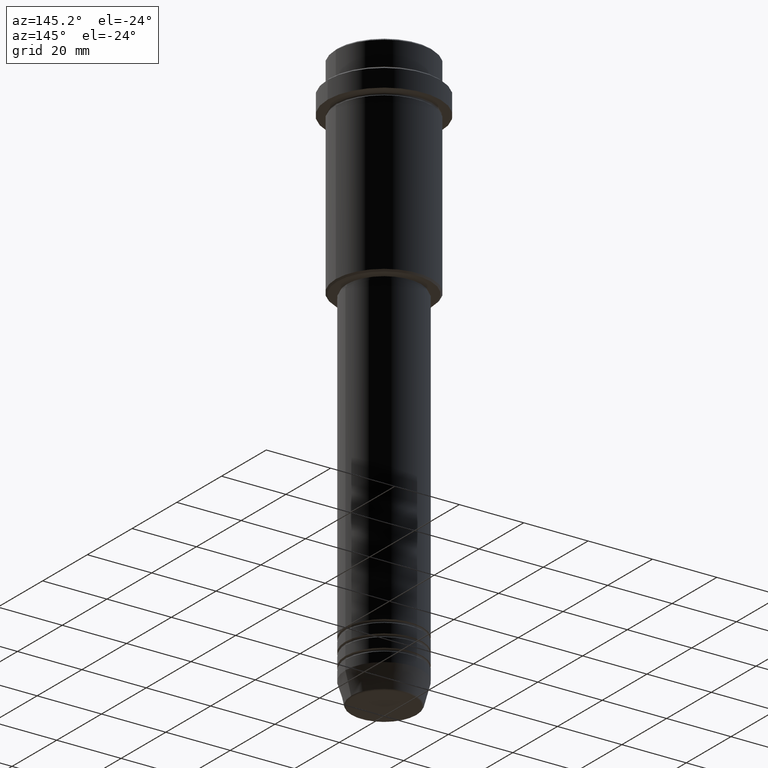
[diagram: clean part render]
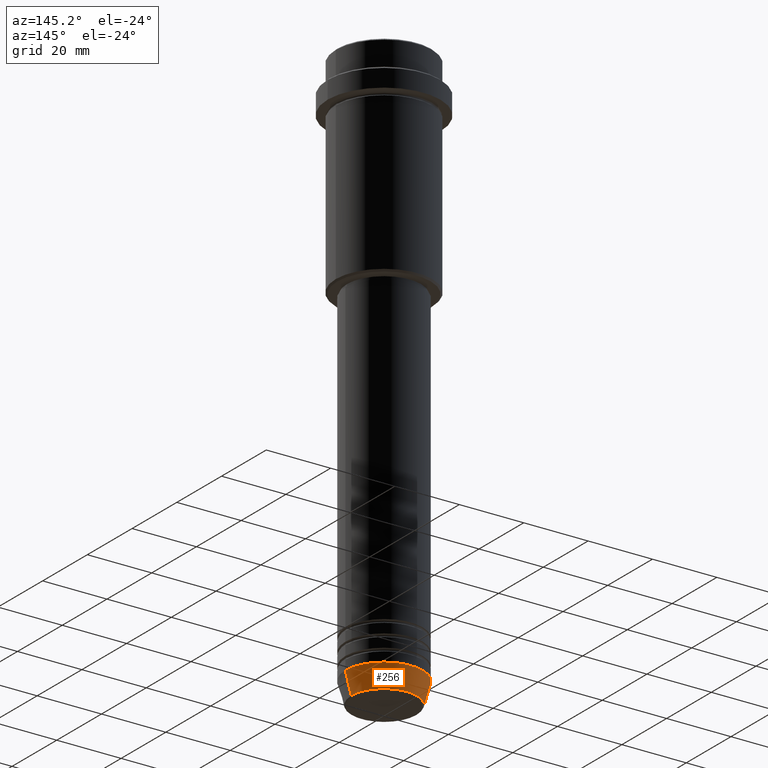
[diagram: same view with one face highlighted and labeled with its STEP entity id]
A machine part, auxiliary view. The second image highlights one B-rep face of the part: STEP entity #256.
In plain terms, the highlighted conical surface has half-angle 15 deg.
Its self-contained STEP definition (entity closure, byte-faithful):
#35 = VECTOR ( 'NONE', #776, 1000.000000000000000 ) ;
#39 = AXIS2_PLACEMENT_3D ( 'NONE', #145, #119, #238 ) ;
#48 = DIRECTION ( 'NONE',  ( -0.000000000000000000, -0.000000000000000000, 1.000000000000000000 ) ) ;
#52 = DIRECTION ( 'NONE',  ( 1.000000000000000000, 0.000000000000000000, 0.000000000000000000 ) ) ;
#117 = EDGE_CURVE ( 'NONE', #1024, #540, #1115, .T. ) ;
#119 = DIRECTION ( 'NONE',  ( -0.000000000000000000, -0.000000000000000000, 1.000000000000000000 ) ) ;
#145 = CARTESIAN_POINT ( 'NONE',  ( 0.000000000000000000, 0.000000000000000000, -179.6294095225512706 ) ) ;
#194 = DIRECTION ( 'NONE',  ( 0.2588190451025213501, 0.000000000000000000, 0.9659258262890680902 ) ) ;
#238 = DIRECTION ( 'NONE',  ( 1.000000000000000000, 0.000000000000000000, 0.000000000000000000 ) ) ;
#256 = ADVANCED_FACE ( 'NONE', ( #895 ), #1172, .T. ) ;
#258 = DIRECTION ( 'NONE',  ( 1.000000000000000000, 0.000000000000000000, 0.000000000000000000 ) ) ;
#270 = EDGE_LOOP ( 'NONE', ( #1351, #744, #558, #282 ) ) ;
#282 = ORIENTED_EDGE ( 'NONE', *, *, #478, .F. ) ;
#341 = CARTESIAN_POINT ( 'NONE',  ( 12.00000000000000000, 0.000000000000000000, -173.0000000000000284 ) ) ;
#364 = CARTESIAN_POINT ( 'NONE',  ( 0.000000000000000000, 0.000000000000000000, -173.0000000000000284 ) ) ;
#478 = EDGE_CURVE ( 'NONE', #931, #990, #634, .T. ) ;
#540 = VERTEX_POINT ( 'NONE', #616 ) ;
#558 = ORIENTED_EDGE ( 'NONE', *, *, #1136, .F. ) ;
#605 = AXIS2_PLACEMENT_3D ( 'NONE', #364, #48, #258 ) ;
#616 = CARTESIAN_POINT ( 'NONE',  ( -12.00000000000000000, 1.469576158976823947E-15, -173.0000000000000284 ) ) ;
#627 = CARTESIAN_POINT ( 'NONE',  ( 12.00000000000000000, 0.000000000000000000, -173.0000000000000284 ) ) ;
#634 = LINE ( 'NONE', #627, #960 ) ;
#660 = EDGE_CURVE ( 'NONE', #931, #1024, #1039, .T. ) ;
#744 = ORIENTED_EDGE ( 'NONE', *, *, #117, .T. ) ;
#776 = DIRECTION ( 'NONE',  ( -0.2588190451025213501, 3.169619151431772337E-17, 0.9659258262890680902 ) ) ;
#792 = DIRECTION ( 'NONE',  ( -0.000000000000000000, -0.000000000000000000, 1.000000000000000000 ) ) ;
#874 = CARTESIAN_POINT ( 'NONE',  ( -10.22365507213719837, 1.360806402472383336E-15, -179.6294095225512706 ) ) ;
#895 = FACE_OUTER_BOUND ( 'NONE', #270, .T. ) ;
#931 = VERTEX_POINT ( 'NONE', #1192 ) ;
#960 = VECTOR ( 'NONE', #194, 1000.000000000000000 ) ;
#990 = VERTEX_POINT ( 'NONE', #341 ) ;
#1000 = CARTESIAN_POINT ( 'NONE',  ( 0.000000000000000000, 0.000000000000000000, -173.0000000000000284 ) ) ;
#1024 = VERTEX_POINT ( 'NONE', #874 ) ;
#1039 = CIRCLE ( 'NONE', #39, 10.22365507213719660 ) ;
#1115 = LINE ( 'NONE', #1321, #35 ) ;
#1136 = EDGE_CURVE ( 'NONE', #990, #540, #1266, .T. ) ;
#1172 = CONICAL_SURFACE ( 'NONE', #605, 12.00000000000000000, 0.2617993877991500740 ) ;
#1192 = CARTESIAN_POINT ( 'NONE',  ( 10.22365507213719660, 0.000000000000000000, -179.6294095225512706 ) ) ;
#1266 = CIRCLE ( 'NONE', #1337, 12.00000000000000000 ) ;
#1321 = CARTESIAN_POINT ( 'NONE',  ( -12.00000000000000000, 1.469576158976823947E-15, -173.0000000000000284 ) ) ;
#1337 = AXIS2_PLACEMENT_3D ( 'NONE', #1000, #792, #52 ) ;
#1351 = ORIENTED_EDGE ( 'NONE', *, *, #660, .T. ) ;